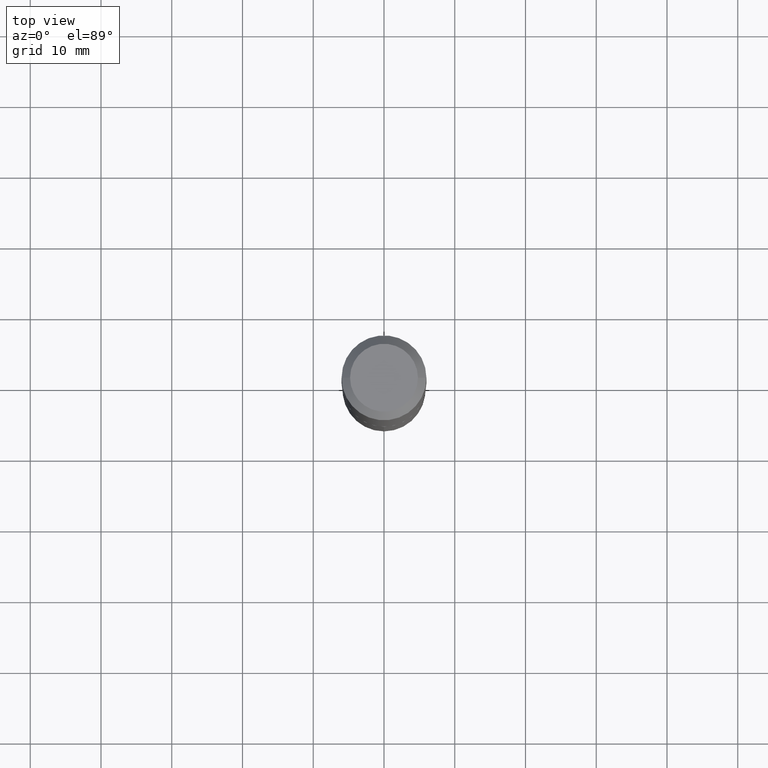
[diagram: clean part render]
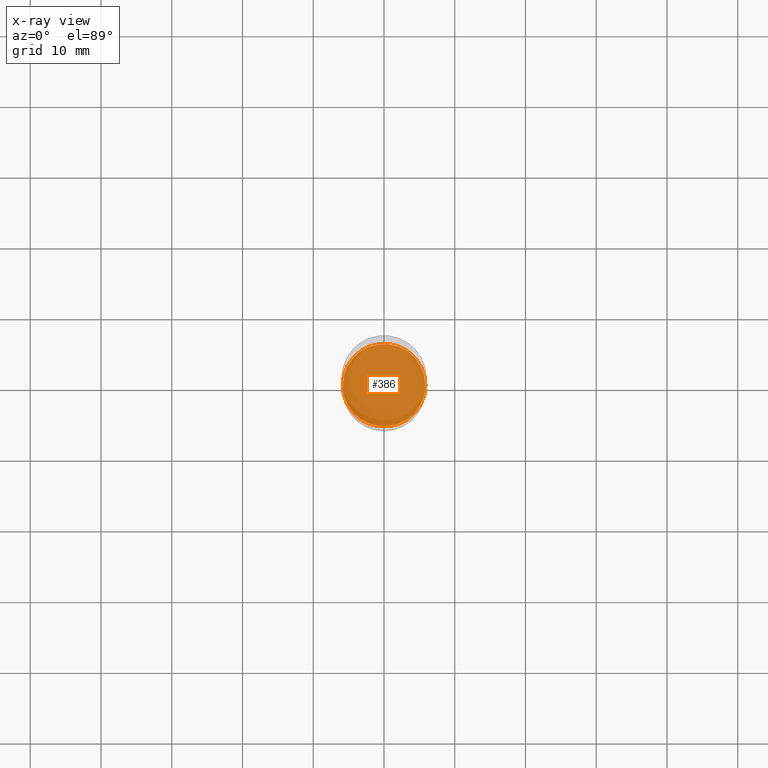
[diagram: x-ray — body ghosted, one internal face saturated and labeled with its STEP entity id]
A machine part, top view, then the same camera in x-ray: the body is ghosted and one INTERNAL B-rep face — a face not visible from any outside direction — is saturated and labeled: STEP entity #386.
In plain terms, the highlighted planar face has unit normal (-0, 0, 1).
Its self-contained STEP definition (entity closure, byte-faithful):
#32 = CARTESIAN_POINT ( 'NONE',  ( -0.2298000000000000043, -6.886880366031413874E-15, -2.440900000000000070 ) ) ;
#51 = DIRECTION ( 'NONE',  ( -2.438088387897960049E-29, 3.491481338843145188E-15, 1.000000000000000000 ) ) ;
#53 = EDGE_CURVE ( 'NONE', #109, #154, #250, .T. ) ;
#61 = CARTESIAN_POINT ( 'NONE',  ( 0.2298000000000000043, -1.012704162331453900E-14, -2.440900000000000070 ) ) ;
#104 = AXIS2_PLACEMENT_3D ( 'NONE', #201, #129, #422 ) ;
#109 = VERTEX_POINT ( 'NONE', #61 ) ;
#129 = DIRECTION ( 'NONE',  ( -2.445468806185136597E-29, 3.491481338843145583E-15, 1.000000000000000000 ) ) ;
#154 = VERTEX_POINT ( 'NONE', #32 ) ;
#157 = ORIENTED_EDGE ( 'NONE', *, *, #472, .F. ) ;
#161 = AXIS2_PLACEMENT_3D ( 'NONE', #461, #169, #423 ) ;
#169 = DIRECTION ( 'NONE',  ( -2.445468806185136597E-29, 3.491481338843145583E-15, 1.000000000000000000 ) ) ;
#201 = CARTESIAN_POINT ( 'NONE',  ( 5.969144809017300159E-29, -8.522356799982234543E-15, -2.440900000000000070 ) ) ;
#250 = CIRCLE ( 'NONE', #161, 0.2298000000000000043 ) ;
#272 = PLANE ( 'NONE',  #307 ) ;
#307 = AXIS2_PLACEMENT_3D ( 'NONE', #466, #51, #458 ) ;
#343 = FACE_OUTER_BOUND ( 'NONE', #390, .T. ) ;
#364 = CIRCLE ( 'NONE', #104, 0.2298000000000000043 ) ;
#386 = ADVANCED_FACE ( 'NONE', ( #343 ), #272, .F. ) ;
#390 = EDGE_LOOP ( 'NONE', ( #416, #157 ) ) ;
#416 = ORIENTED_EDGE ( 'NONE', *, *, #53, .F. ) ;
#422 = DIRECTION ( 'NONE',  ( 1.000000000000000000, -6.982962677686267499E-15, 0.000000000000000000 ) ) ;
#423 = DIRECTION ( 'NONE',  ( 1.000000000000000000, -6.982962677686267499E-15, 0.000000000000000000 ) ) ;
#458 = DIRECTION ( 'NONE',  ( 1.000000000000000000, -6.982962677686265922E-15, 4.876176775795935793E-29 ) ) ;
#461 = CARTESIAN_POINT ( 'NONE',  ( 5.969144809017300159E-29, -8.522356799982234543E-15, -2.440900000000000070 ) ) ;
#466 = CARTESIAN_POINT ( 'NONE',  ( 3.942879941713351424E-29, -1.142408341779559468E-14, -2.440900000000000070 ) ) ;
#472 = EDGE_CURVE ( 'NONE', #154, #109, #364, .T. ) ;